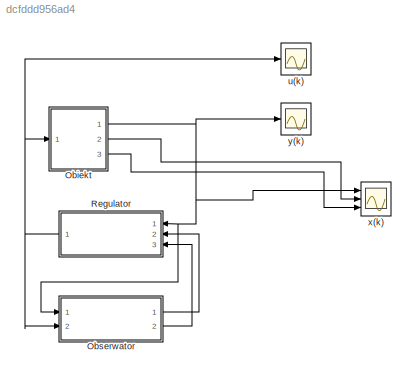
MODEL slx_dcfddd956ad4
KIND model
CONFIG AbsTol = auto
CONFIG EnableMultiTasking = off
CONFIG FixedStep = auto
CONFIG MaxStep = auto
CONFIG MinStep = auto
CONFIG RelTol = 1e-3
CONFIG SampleTimeConstraint = Unconstrained
CONFIG Solver = VariableStepAuto
CONFIG SolverName = VariableStepAuto
CONFIG StartTime = 0.0
CONFIG StopTime = 6
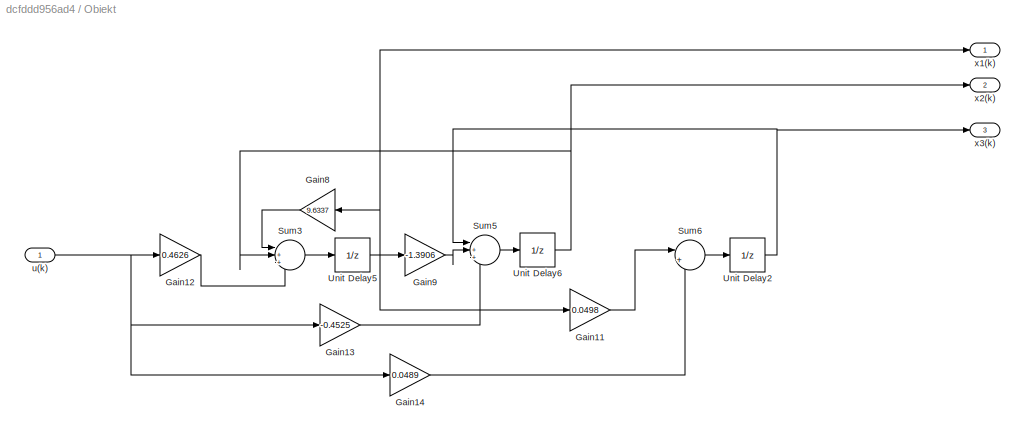
BLOCK [SubSystem] Obiekt
  Ports = [1, 3]
  RequestExecContextInheritance = off
  Variant = off
BLOCK [Gain] Obiekt/Gain11
  Gain = 0.0498
  OutDataTypeStr = Inherit: Inherit via internal rule
  ParamDataTypeStr = double
  SaturateOnIntegerOverflow = off
BLOCK [Gain] Obiekt/Gain12
  Gain = 0.4626
  OutDataTypeStr = Inherit: Inherit via internal rule
  ParamDataTypeStr = double
  SaturateOnIntegerOverflow = off
BLOCK [Gain] Obiekt/Gain13
  Gain = -0.4525
  OutDataTypeStr = Inherit: Inherit via internal rule
  ParamDataTypeStr = double
  SaturateOnIntegerOverflow = off
BLOCK [Gain] Obiekt/Gain14
  Gain = 0.0489
  OutDataTypeStr = Inherit: Inherit via internal rule
  ParamDataTypeStr = double
  SaturateOnIntegerOverflow = off
BLOCK [Gain] Obiekt/Gain8
  Gain = 9.6337
  OutDataTypeStr = Inherit: Inherit via internal rule
  ParamDataTypeStr = double
  SaturateOnIntegerOverflow = off
BLOCK [Gain] Obiekt/Gain9
  Gain = -1.3906
  OutDataTypeStr = Inherit: Inherit via internal rule
  ParamDataTypeStr = double
  SaturateOnIntegerOverflow = off
BLOCK [Sum] Obiekt/Sum3
  IconShape = round
  InputSameDT = off
  Inputs = |+++
  OutDataTypeStr = Inherit: Inherit via internal rule
  Ports = [3, 1]
  SaturateOnIntegerOverflow = off
BLOCK [Sum] Obiekt/Sum5
  IconShape = round
  InputSameDT = off
  Inputs = |+++
  OutDataTypeStr = Inherit: Inherit via internal rule
  Ports = [3, 1]
  SaturateOnIntegerOverflow = off
BLOCK [Sum] Obiekt/Sum6
  IconShape = round
  InputSameDT = off
  Inputs = |++
  OutDataTypeStr = Inherit: Inherit via internal rule
  Ports = [2, 1]
  SaturateOnIntegerOverflow = off
BLOCK [UnitDelay] Obiekt/Unit Delay2
  InitialCondition = 1
  InputProcessing = Elements as channels (sample based)
  SampleTime = Tp
BLOCK [UnitDelay] Obiekt/Unit Delay5
  InitialCondition = 3
  InputProcessing = Elements as channels (sample based)
  SampleTime = Tp
BLOCK [UnitDelay] Obiekt/Unit Delay6
  InitialCondition = 2
  InputProcessing = Elements as channels (sample based)
  SampleTime = Tp
BLOCK [Inport] Obiekt/u(k)
  IconDisplay = Port number
BLOCK [Outport] Obiekt/x1(k)
  IconDisplay = Port number
BLOCK [Outport] Obiekt/x2(k) 
  IconDisplay = Port number
  Port = 2
BLOCK [Outport] Obiekt/x3(k) 
  IconDisplay = Port number
  Port = 3
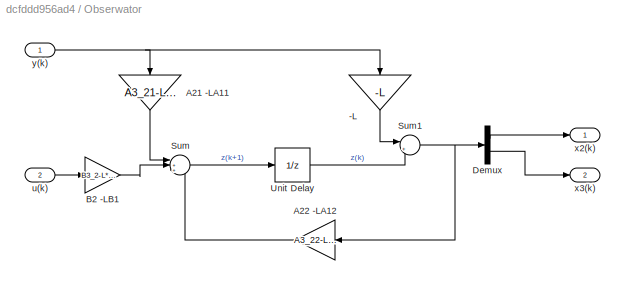
BLOCK [SubSystem] Obserwator
  Ports = [2, 2]
  RequestExecContextInheritance = off
  Variant = off
BLOCK [Gain] Obserwator/-L
  Gain = -L
  Multiplication = Matrix(K*u)
  OutDataTypeStr = Inherit: Inherit via internal rule
  ParamDataTypeStr = Inherit: Inherit via internal rule
  SaturateOnIntegerOverflow = off
BLOCK [Gain] Obserwator/A21 -LA11
  Gain = A3_21-L*A3_11
  Multiplication = Matrix(K*u)
  OutDataTypeStr = Inherit: Inherit via internal rule
  ParamDataTypeStr = Inherit: Inherit via internal rule
  SaturateOnIntegerOverflow = off
BLOCK [Gain] Obserwator/A22 -LA12
  Gain = A3_22-L*A3_12
  Multiplication = Matrix(K*u)
  OutDataTypeStr = Inherit: Inherit via internal rule
  ParamDataTypeStr = Inherit: Inherit via internal rule
  SaturateOnIntegerOverflow = off
BLOCK [Gain] Obserwator/B2 -LB1
  Gain = B3_2-L*B3_1
  Multiplication = Matrix(K*u)
  OutDataTypeStr = Inherit: Inherit via internal rule
  ParamDataTypeStr = Inherit: Inherit via internal rule
  SaturateOnIntegerOverflow = off
BLOCK [Demux] Obserwator/Demux
  DisplayOption = bar
  Outputs = 2
  Ports = [1, 2]
BLOCK [Sum] Obserwator/Sum
  IconShape = round
  InputSameDT = off
  Inputs = |+++
  OutDataTypeStr = Inherit: Inherit via internal rule
  Ports = [3, 1]
  SaturateOnIntegerOverflow = off
BLOCK [Sum] Obserwator/Sum1
  IconShape = round
  InputSameDT = off
  Inputs = |++
  OutDataTypeStr = Inherit: Inherit via internal rule
  Ports = [2, 1]
  SaturateOnIntegerOverflow = off
BLOCK [UnitDelay] Obserwator/Unit Delay
  InputProcessing = Elements as channels (sample based)
  SampleTime = Tp
BLOCK [Inport] Obserwator/u(k)
  IconDisplay = Port number
  Port = 2
BLOCK [Outport] Obserwator/x2(k)
  IconDisplay = Port number
BLOCK [Outport] Obserwator/x3(k) 
  IconDisplay = Port number
  Port = 2
BLOCK [Inport] Obserwator/y(k) 
  IconDisplay = Port number
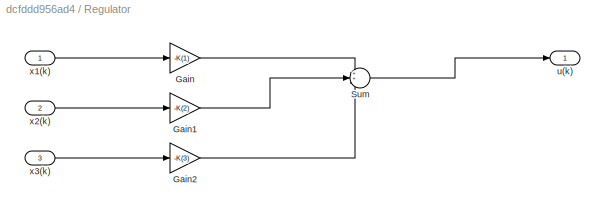
BLOCK [SubSystem] Regulator
  Ports = [3, 1]
  RequestExecContextInheritance = off
  Variant = off
BLOCK [Gain] Regulator/Gain
  Gain = -K(1)
  OutDataTypeStr = Inherit: Inherit via internal rule
  ParamDataTypeStr = Inherit: Inherit via internal rule
  SaturateOnIntegerOverflow = off
BLOCK [Gain] Regulator/Gain1
  Gain = -K(2)
  OutDataTypeStr = Inherit: Inherit via internal rule
  ParamDataTypeStr = Inherit: Inherit via internal rule
  SaturateOnIntegerOverflow = off
BLOCK [Gain] Regulator/Gain2
  Gain = -K(3)
  OutDataTypeStr = Inherit: Inherit via internal rule
  ParamDataTypeStr = Inherit: Inherit via internal rule
  SaturateOnIntegerOverflow = off
BLOCK [Sum] Regulator/Sum
  IconShape = round
  InputSameDT = off
  Inputs = 3
  OutDataTypeStr = Inherit: Inherit via internal rule
  Ports = [3, 1]
  SaturateOnIntegerOverflow = off
BLOCK [Outport] Regulator/u(k)
  IconDisplay = Port number
BLOCK [Inport] Regulator/x1(k) 
  IconDisplay = Port number
BLOCK [Inport] Regulator/x2(k)
  IconDisplay = Port number
  Port = 2
BLOCK [Inport] Regulator/x3(k) 
  IconDisplay = Port number
  Port = 3
BLOCK [Scope] u(k)
  NumInputPorts = 1
  Ports = [1]
  ScopeSpecificationString = Simulink.scopes.TimeScopeBlockCfg('CurrentConfiguration', extmgr.ConfigurationSet(extmgr.Configuration('Core','General UI',true),extmgr.Configuration('Core','Source UI',true),extmgr.Configuration('Sources','WiredSimulink',true,'DataLoggingVariableName','ScopeData3'),extmgr.Configuration('Visuals','Time Domain',true,'SerializedDisplays',{struct('MinYLimReal','-27670.45072','MaxYLimReal','22174.5698...<+1452ch>
BLOCK [Scope] x(k)
  NumInputPorts = 3
  Ports = [3]
  ScopeSpecificationString = Simulink.scopes.TimeScopeBlockCfg('CurrentConfiguration', extmgr.ConfigurationSet(extmgr.Configuration('Core','General UI',true),extmgr.Configuration('Core','Source UI',true),extmgr.Configuration('Sources','WiredSimulink',true,'DataLoggingVariableName','ScopeData1'),extmgr.Configuration('Visuals','Time Domain',true,'SerializedDisplays',{struct('MinYLimReal','-8190.5486','MaxYLimReal','6565.47452',...<+1461ch>
BLOCK [Scope] y(k)
  NumInputPorts = 1
  Ports = [1]
  ScopeSpecificationString = Simulink.scopes.TimeScopeBlockCfg('CurrentConfiguration', extmgr.ConfigurationSet(extmgr.Configuration('Core','General UI',true),extmgr.Configuration('Core','Source UI',true),extmgr.Configuration('Sources','WiredSimulink',true),extmgr.Configuration('Visuals','Time Domain',true,'SerializedDisplays',{struct('MinYLimReal','-1535.93157','MaxYLimReal','1916.40912','YLabelReal','','MinYLimMag','  0.0000...<+1377ch>
LINE Obiekt/Gain11:1 -> Obiekt/Sum6:1
LINE Obiekt/Gain12:1 -> Obiekt/Sum3:3
LINE Obiekt/Gain13:1 -> Obiekt/Sum5:3
LINE Obiekt/Gain14:1 -> Obiekt/Sum6:2
LINE Obiekt/Gain8:1 -> Obiekt/Sum3:1
LINE Obiekt/Gain9:1 -> Obiekt/Sum5:2
LINE Obiekt/Sum3:1 -> Obiekt/Unit Delay5:1
LINE Obiekt/Sum5:1 -> Obiekt/Unit Delay6:1
LINE Obiekt/Sum6:1 -> Obiekt/Unit Delay2:1
NET Obiekt/Unit Delay2:1 -> Obiekt/Sum5:1, Obiekt/x3(k) :1
NET Obiekt/Unit Delay5:1 -> Obiekt/Gain11:1, Obiekt/Gain8:1, Obiekt/Gain9:1, Obiekt/x1(k):1
NET Obiekt/Unit Delay6:1 -> Obiekt/Sum3:2, Obiekt/x2(k) :1
NET Obiekt/u(k):1 -> Obiekt/Gain12:1, Obiekt/Gain13:1, Obiekt/Gain14:1
NET Obiekt:1 -> Obserwator:1, Regulator:1, x(k):1, y(k):1
LINE Obiekt:2 -> x(k):2
LINE Obiekt:3 -> x(k):3
LINE Obserwator/-L:1 -> Obserwator/Sum1:1
LINE Obserwator/A21 -LA11:1 -> Obserwator/Sum:1
LINE Obserwator/A22 -LA12:1 -> Obserwator/Sum:3
LINE Obserwator/B2 -LB1:1 -> Obserwator/Sum:2
LINE Obserwator/Demux:1 -> Obserwator/x2(k):1
LINE Obserwator/Demux:2 -> Obserwator/x3(k) :1
NET Obserwator/Sum1:1 -> Obserwator/A22 -LA12:1, Obserwator/Demux:1
LINE Obserwator/Sum:1 -> Obserwator/Unit Delay:1
LINE Obserwator/Unit Delay:1 -> Obserwator/Sum1:2
LINE Obserwator/u(k):1 -> Obserwator/B2 -LB1:1
NET Obserwator/y(k) :1 -> Obserwator/-L:1, Obserwator/A21 -LA11:1
LINE Obserwator:1 -> Regulator:2
LINE Obserwator:2 -> Regulator:3
LINE Regulator/Gain1:1 -> Regulator/Sum:2
LINE Regulator/Gain2:1 -> Regulator/Sum:3
LINE Regulator/Gain:1 -> Regulator/Sum:1
LINE Regulator/Sum:1 -> Regulator/u(k):1
LINE Regulator/x1(k) :1 -> Regulator/Gain:1
LINE Regulator/x2(k):1 -> Regulator/Gain1:1
LINE Regulator/x3(k) :1 -> Regulator/Gain2:1
NET Regulator:1 -> Obiekt:1, Obserwator:2, u(k):1
note: NET lines group one-source signal fan-out (src -> all destinations, sorted); 1:1 wires keep LINE
